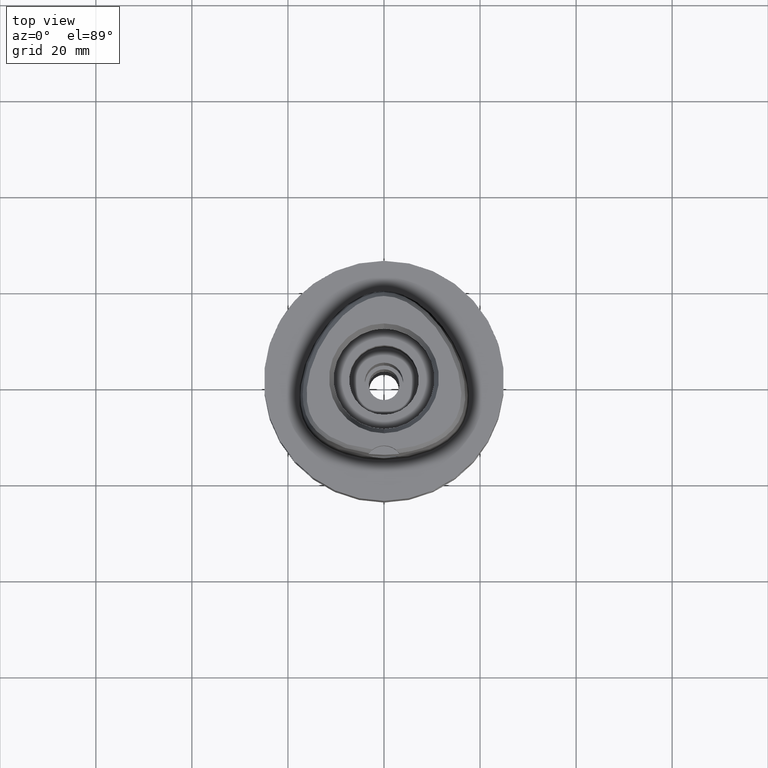
[diagram: clean part render]
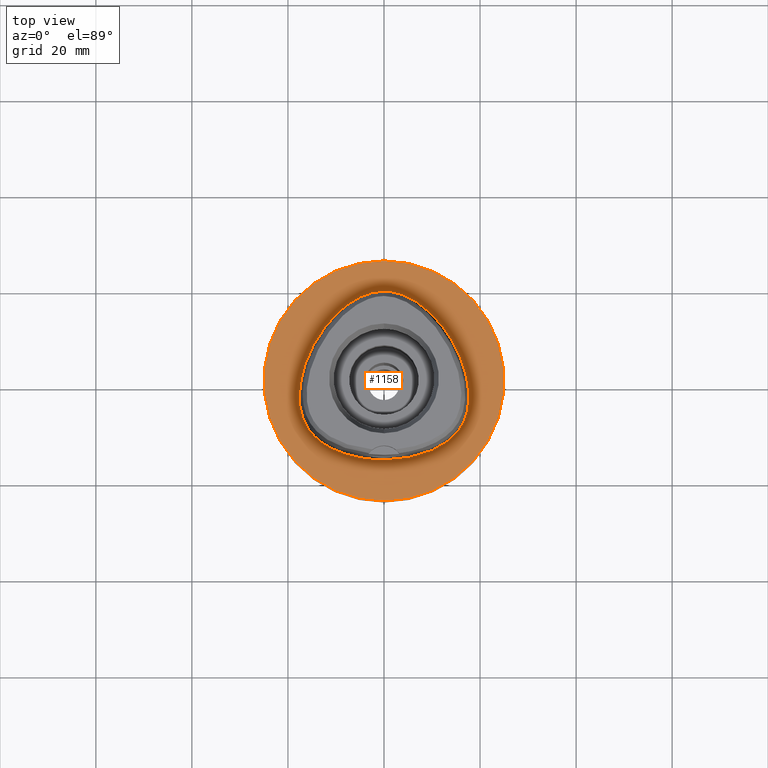
[diagram: same view with one face highlighted and labeled with its STEP entity id]
A machine part, top view. The second image highlights one B-rep face of the part: STEP entity #1158.
In plain terms, the highlighted planar face has unit normal (0, 0, -1).
Its self-contained STEP definition (entity closure, byte-faithful):
#36 = CARTESIAN_POINT ( 'NONE',  ( -14.38008119262156370, 8.302343747531034879, 1.965274597790292455E-07 ) ) ;
#57 = CARTESIAN_POINT ( 'NONE',  ( 7.240888441932999685E-11, 18.69499999997999851, 1.574666323259999725E-13 ) ) ;
#128 = CARTESIAN_POINT ( 'NONE',  ( -14.78833380041826118, -11.28232909817104890, 1.965274597790292455E-07 ) ) ;
#142 = AXIS2_PLACEMENT_3D ( 'NONE', #1016, #2479, #4405 ) ;
#144 = EDGE_LOOP ( 'NONE', ( #1653, #3174 ) ) ;
#185 = CARTESIAN_POINT ( 'NONE',  ( 1.683697724980808053, -16.45500004154420637, -1.662050803599322276E-06 ) ) ;
#215 = CARTESIAN_POINT ( 'NONE',  ( 5.051093174937996366, -16.15562504112853048, -1.662050803599322488E-06 ) ) ;
#241 = VERTEX_POINT ( 'NONE', #1122 ) ;
#266 = CARTESIAN_POINT ( 'NONE',  ( 7.967839690105368078, 15.83070315796085481, -1.662050803599322488E-06 ) ) ;
#452 = CARTESIAN_POINT ( 'NONE',  ( -4.728927204704250542, 17.73480468300209623, 1.965274597790292455E-07 ) ) ;
#475 = CARTESIAN_POINT ( 'NONE',  ( -5.051093166701701165, -16.15562499513589145, 1.965274597790292455E-07 ) ) ;
#507 = AXIS2_PLACEMENT_3D ( 'NONE', #3444, #2412, #4247 ) ;
#523 = CIRCLE ( 'NONE', #1137, 25.00000000000000000 ) ;
#558 = DIRECTION ( 'NONE',  ( 0.0000000000000000000, -1.000000000000000000, 0.0000000000000000000 ) ) ;
#581 = CARTESIAN_POINT ( 'NONE',  ( 14.78833383425402914, -11.28232913024575446, -1.662050803599322488E-06 ) ) ;
#863 = CARTESIAN_POINT ( 'NONE',  ( -8.946741554500185600, -15.03902343286300791, 1.965274597790292455E-07 ) ) ;
#864 = FACE_BOUND ( 'NONE', #4207, .T. ) ;
#925 = CARTESIAN_POINT ( 'NONE',  ( -1.725923218821000390E-11, -16.45500000000000185, 1.586138627847999922E-13 ) ) ;
#1016 = CARTESIAN_POINT ( 'NONE',  ( 0.0000000000000000000, 1.286491462503999938E-14, 0.0000000000000000000 ) ) ;
#1023 = CARTESIAN_POINT ( 'NONE',  ( 2.040572366222299650, 18.55015629091495555, -1.662050803599322488E-06 ) ) ;
#1119 = FACE_OUTER_BOUND ( 'NONE', #144, .T. ) ;
#1122 = CARTESIAN_POINT ( 'NONE',  ( 0.0000000000000000000, -25.00000000000000000, 0.0000000000000000000 ) ) ;
#1137 = AXIS2_PLACEMENT_3D ( 'NONE', #4286, #3873, #558 ) ;
#1145 = CARTESIAN_POINT ( 'NONE',  ( -7.967839661165066367, 15.83070312110102051, 1.965274597790292455E-07 ) ) ;
#1158 = ADVANCED_FACE ( 'NONE', ( #1119, #864 ), #1965, .F. ) ;
#1194 = CARTESIAN_POINT ( 'NONE',  ( -1.683697722236912719, -16.45499999508711042, 1.965274597790292455E-07 ) ) ;
#1197 = ORIENTED_EDGE ( 'NONE', *, *, #1781, .F. ) ;
#1238 = CARTESIAN_POINT ( 'NONE',  ( 17.49754716421104561, -0.2285937427048403137, -1.662050803599322488E-06 ) ) ;
#1310 = CARTESIAN_POINT ( 'NONE',  ( 17.56373947064422580, -5.455996099663428467, -1.662050803599322488E-06 ) ) ;
#1407 = VERTEX_POINT ( 'NONE', #57 ) ;
#1429 = B_SPLINE_CURVE_WITH_KNOTS ( 'NONE', 3,
 ( #4470, #1541, #3029, #452, #1145, #3077, #36, #3442, #3421, #4565, #1517, #1922, #2304, #3791, #2698, #128, #2608, #1605, #863, #475, #1194, #2980 ),
 .UNSPECIFIED., .F., .F.,
 ( 4, 1, 1, 1, 1, 1, 1, 1, 1, 1, 1, 1, 1, 1, 1, 1, 1, 1, 1, 4 ),
 ( 0.0000000000000000000, 0.04166666666808999803, 0.08333333333469000737, 0.1666666666679000042, 0.2500000000011000090, 0.3333333333342999860, 0.4166666666675999942, 0.5000000000008000267, 0.5416666666674000430, 0.5833333333340000593, 0.6250000000005999645, 0.6458333333339000282, 0.6666666666671999808, 0.6875000000005000445, 0.7083333333337999971, 0.7500000000004000134, 0.7916666666671000607, 0.8333333333336000459, 0.9166666666668999985, 1.000000000000000000 ),
 .UNSPECIFIED. ) ;
#1517 = CARTESIAN_POINT ( 'NONE',  ( -17.56373942444707481, -5.455996093050944573, 1.965274597790292455E-07 ) ) ;
#1541 = CARTESIAN_POINT ( 'NONE',  ( -0.6801907855161170025, 18.69499999508673227, 1.965274597790292455E-07 ) ) ;
#1605 = CARTESIAN_POINT ( 'NONE',  ( -11.68694516339696143, -13.70394530822246182, 1.965274597790292455E-07 ) ) ;
#1653 = ORIENTED_EDGE ( 'NONE', *, *, #4296, .F. ) ;
#1666 = CARTESIAN_POINT ( 'NONE',  ( 13.50690096057562251, -12.48264651718803186, -1.662050803599322488E-06 ) ) ;
#1692 = CARTESIAN_POINT ( 'NONE',  ( 14.38008123306254404, 8.302343770877742557, -1.662050803599322488E-06 ) ) ;
#1781 = EDGE_CURVE ( 'NONE', #3859, #1407, #4725, .T. ) ;
#1922 = CARTESIAN_POINT ( 'NONE',  ( -17.16495051308023534, -7.165908201722285042, 1.965274597790292455E-07 ) ) ;
#1965 = PLANE ( 'NONE',  #507 ) ;
#2052 = CARTESIAN_POINT ( 'NONE',  ( 17.71143739729563293, -3.269218749729186690, -1.662050803599322488E-06 ) ) ;
#2304 = CARTESIAN_POINT ( 'NONE',  ( -16.66912841689466873, -8.445800779250111745, 1.965274597790292455E-07 ) ) ;
#2327 = CARTESIAN_POINT ( 'NONE',  ( -1.725923218821000390E-11, -16.45500000000000185, 1.586138627847999922E-13 ) ) ;
#2372 = CIRCLE ( 'NONE', #142, 25.00000000000000000 ) ;
#2388 = CARTESIAN_POINT ( 'NONE',  ( 11.68694518644097080, -13.70394534872562886, -1.662050803599322488E-06 ) ) ;
#2412 = DIRECTION ( 'NONE',  ( 0.0000000000000000000, 0.0000000000000000000, -1.000000000000000000 ) ) ;
#2444 = EDGE_CURVE ( 'NONE', #1407, #3859, #1429, .T. ) ;
#2479 = DIRECTION ( 'NONE',  ( 0.0000000000000000000, 0.0000000000000000000, -1.000000000000000000 ) ) ;
#2486 = CARTESIAN_POINT ( 'NONE',  ( 7.240888441932999685E-11, 18.69499999997999851, 1.574666323259999725E-13 ) ) ;
#2519 = CARTESIAN_POINT ( 'NONE',  ( 0.0000000000000000000, 25.00000000000000000, 0.0000000000000000000 ) ) ;
#2608 = CARTESIAN_POINT ( 'NONE',  ( -13.50690093175591144, -12.48264648050012049, 1.965274597790292455E-07 ) ) ;
#2694 = CARTESIAN_POINT ( 'NONE',  ( 16.51672828710628593, 3.703437514184078516, -1.662050803599322488E-06 ) ) ;
#2698 = CARTESIAN_POINT ( 'NONE',  ( -15.64884223857577972, -10.21298827835608769, 1.965274597790292455E-07 ) ) ;
#2845 = CARTESIAN_POINT ( 'NONE',  ( 4.728927224673980412, 17.73480472549094600, -1.662050803599322488E-06 ) ) ;
#2980 = CARTESIAN_POINT ( 'NONE',  ( -1.725923218821000390E-11, -16.45500000000000185, 1.586138627847999922E-13 ) ) ;
#3029 = CARTESIAN_POINT ( 'NONE',  ( -2.040572356655009134, 18.55015624515753814, 1.965274597790292455E-07 ) ) ;
#3077 = CARTESIAN_POINT ( 'NONE',  ( -11.46563507645222835, 12.45218749681769133, 1.965274597790292455E-07 ) ) ;
#3132 = EDGE_CURVE ( 'NONE', #241, #3744, #523, .T. ) ;
#3140 = CARTESIAN_POINT ( 'NONE',  ( 15.64884227622724566, -10.21298830572506233, -1.662050803599322488E-06 ) ) ;
#3174 = ORIENTED_EDGE ( 'NONE', *, *, #3132, .F. ) ;
#3189 = CARTESIAN_POINT ( 'NONE',  ( 0.6801907888290359416, 18.69500004154459916, -1.662050803599322488E-06 ) ) ;
#3286 = CARTESIAN_POINT ( 'NONE',  ( 11.46563511216556108, 12.45218752694998798, -1.662050803599322488E-06 ) ) ;
#3421 = CARTESIAN_POINT ( 'NONE',  ( -17.49754711821130826, -0.2285937508625711656, 1.965274597790292455E-07 ) ) ;
#3439 = CARTESIAN_POINT ( 'NONE',  ( 16.20602475568622225, -9.356552755189001758, -1.662050803599322488E-06 ) ) ;
#3442 = CARTESIAN_POINT ( 'NONE',  ( -16.51672824315706478, 3.703437498322585508, 1.965274597790292455E-07 ) ) ;
#3444 = CARTESIAN_POINT ( 'NONE',  ( 0.0000000000000000000, 1.224646799146999965E-14, 0.0000000000000000000 ) ) ;
#3532 = CARTESIAN_POINT ( 'NONE',  ( 8.946741570435911228, -15.03902347676841877, -1.662050803599322488E-06 ) ) ;
#3744 = VERTEX_POINT ( 'NONE', #2519 ) ;
#3791 = CARTESIAN_POINT ( 'NONE',  ( -16.20602471537863210, -9.356552731914222321, 1.965274597790292455E-07 ) ) ;
#3859 = VERTEX_POINT ( 'NONE', #2327 ) ;
#3870 = ORIENTED_EDGE ( 'NONE', *, *, #2444, .F. ) ;
#3873 = DIRECTION ( 'NONE',  ( 0.0000000000000000000, 0.0000000000000000000, -1.000000000000000000 ) ) ;
#4207 = EDGE_LOOP ( 'NONE', ( #3870, #1197 ) ) ;
#4247 = DIRECTION ( 'NONE',  ( 0.0000000000000000000, -1.000000000000000000, 0.0000000000000000000 ) ) ;
#4286 = CARTESIAN_POINT ( 'NONE',  ( 0.0000000000000000000, 1.286491462503999938E-14, 0.0000000000000000000 ) ) ;
#4287 = CARTESIAN_POINT ( 'NONE',  ( 16.66912845942986010, -8.445800798166668955, -1.662050803599322488E-06 ) ) ;
#4296 = EDGE_CURVE ( 'NONE', #3744, #241, #2372, .T. ) ;
#4405 = DIRECTION ( 'NONE',  ( 0.0000000000000000000, 1.000000000000000000, 0.0000000000000000000 ) ) ;
#4470 = CARTESIAN_POINT ( 'NONE',  ( 7.240888441932999685E-11, 18.69499999997999851, 1.574666323259999725E-13 ) ) ;
#4565 = CARTESIAN_POINT ( 'NONE',  ( -17.71143735068534042, -3.269218750032018672, 1.965274597790292455E-07 ) ) ;
#4629 = CARTESIAN_POINT ( 'NONE',  ( 17.16495055777684442, -7.165908214989941349, -1.662050803599322488E-06 ) ) ;
#4725 = B_SPLINE_CURVE_WITH_KNOTS ( 'NONE', 3,
 ( #925, #185, #215, #3532, #2388, #1666, #581, #3140, #3439, #4287, #4629, #1310, #2052, #1238, #2694, #1692, #3286, #266, #2845, #1023, #3189, #2486 ),
 .UNSPECIFIED., .F., .F.,
 ( 4, 1, 1, 1, 1, 1, 1, 1, 1, 1, 1, 1, 1, 1, 1, 1, 1, 1, 1, 4 ),
 ( 0.0000000000000000000, 0.08333333333350000094, 0.1666666666668000230, 0.2083333333333000081, 0.2499999999998999967, 0.2916666666666000163, 0.3124999999998999689, 0.3333333333331000015, 0.3541666666665000407, 0.3749999999997999933, 0.4166666666664000096, 0.4583333333330000259, 0.4999999999995999866, 0.5833333333328000192, 0.6666666666660999718, 0.7499999999993000044, 0.8333333333325000369, 0.9166666666657000695, 0.9583333333322999747, 1.000000000000000000 ),
 .UNSPECIFIED. ) ;